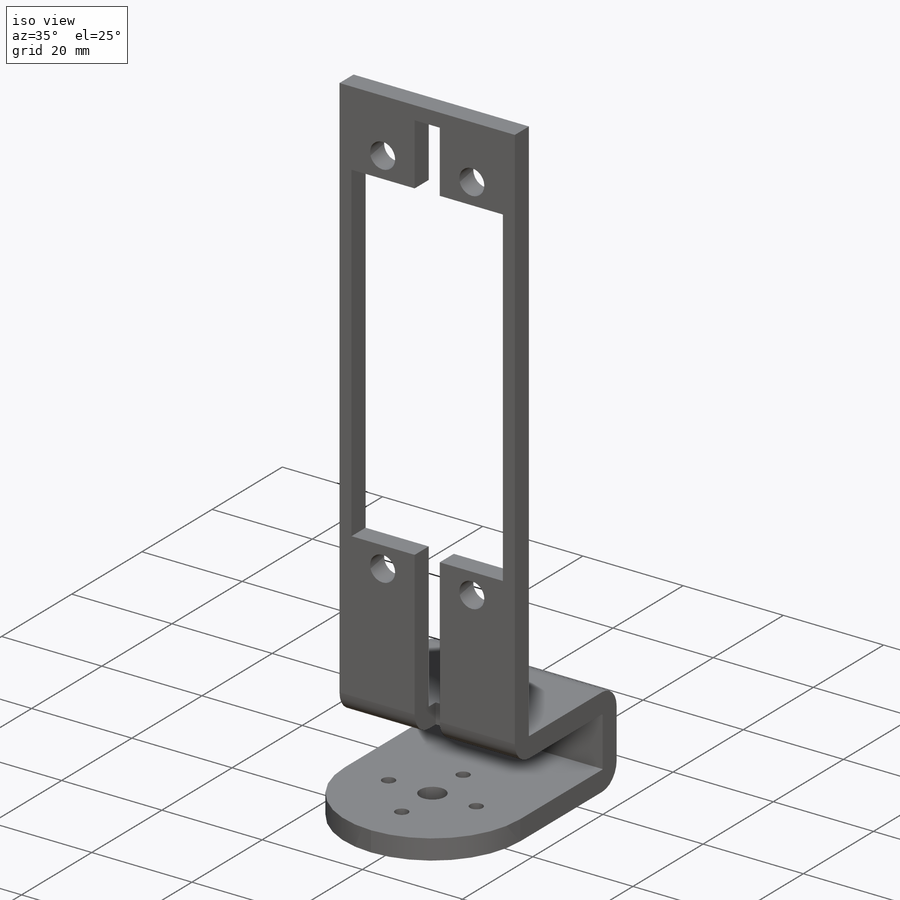
[diagram: iso view]
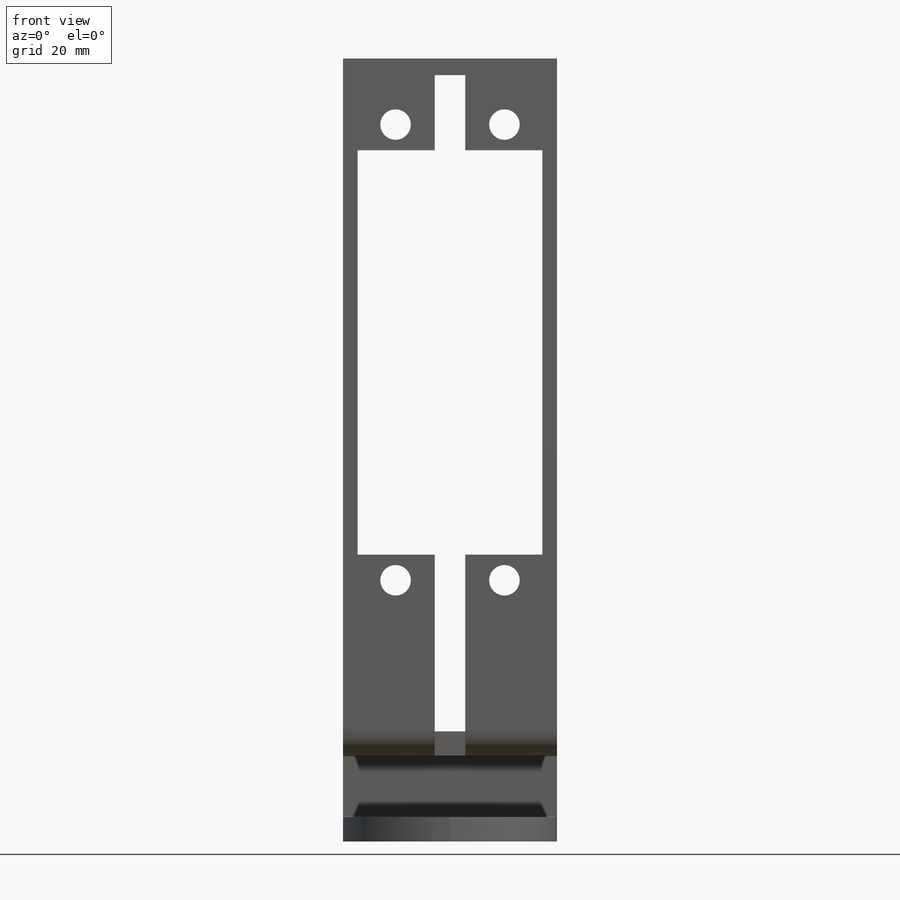
[diagram: front view]
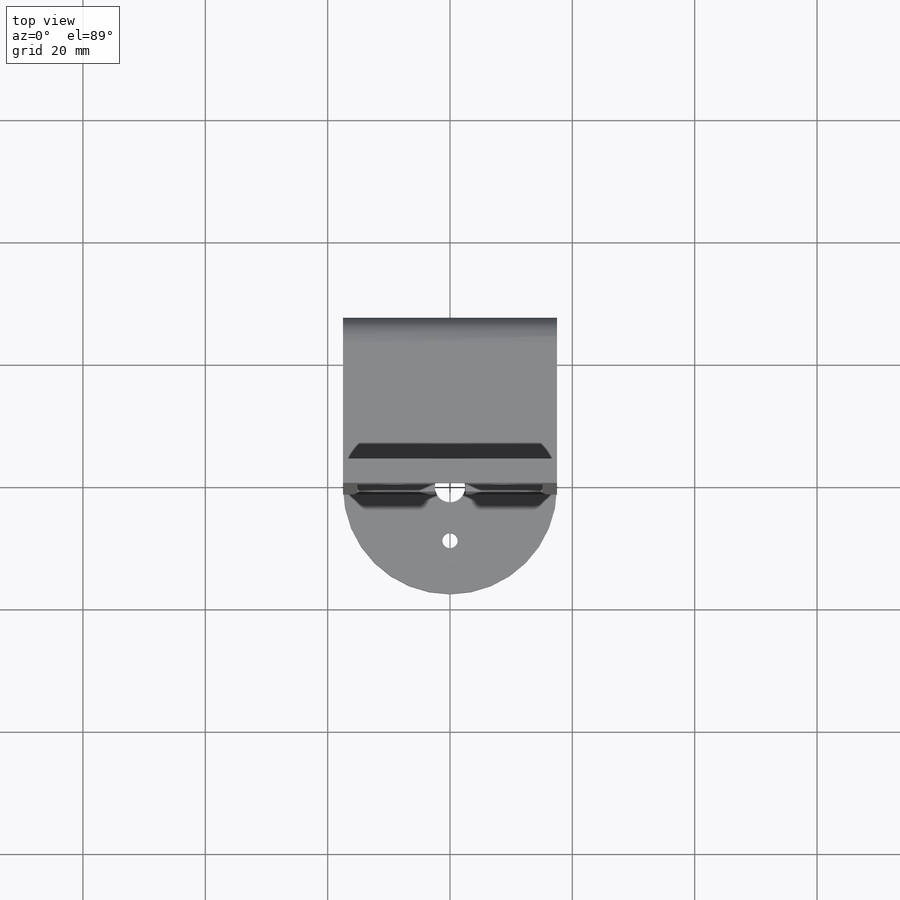
[diagram: top view]
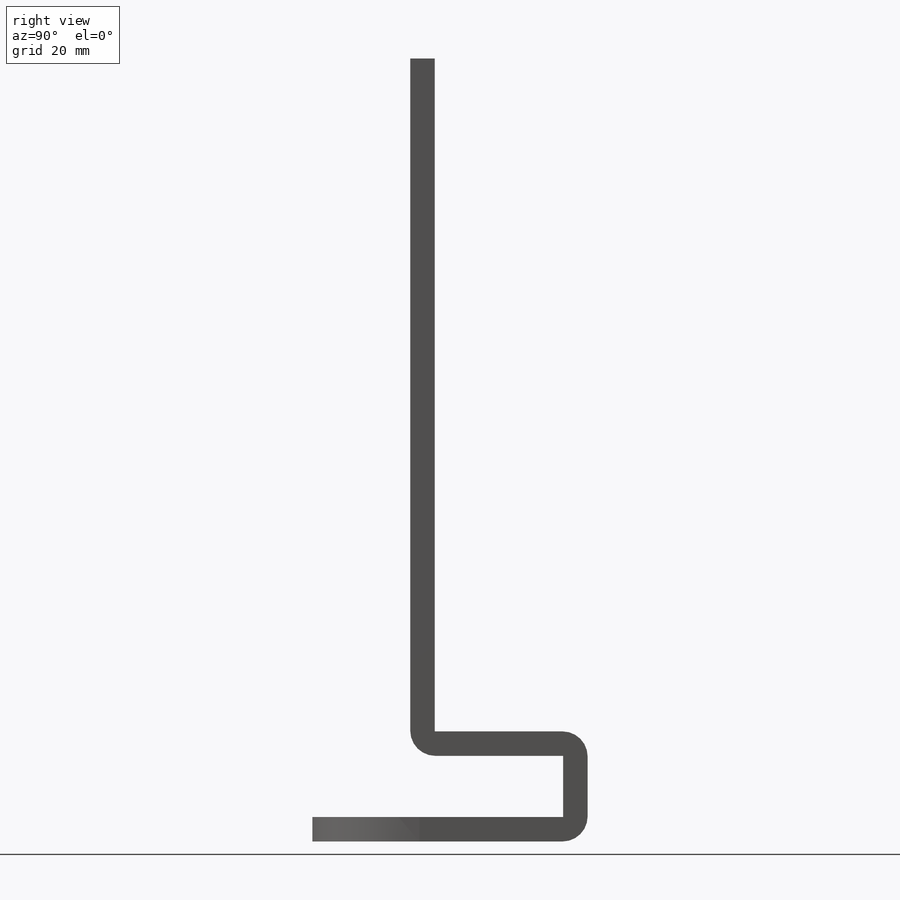
[diagram: right view]
SOLIDWORKS PART (.sldprt)
format: sldprt  version: not decoded by parser v0  size: 674,816 bytes
history: native  units: mm
features: sketch x8, extrude x3, cut_extrude x3, material x1, sheet_metal_op x1 + 3 further entries (+11 scaffold rows collapsed; 1 parser-record rows omitted)
feature tree (31):
  scaffold x11  (default folders/planes/origin — collapsed)
  material  "Material <not specified>"
  sketch  "Sketch3"  dims[D1=27.5mm]
  extrude  "Boss-Extrude2"  Depth=4mm
  sketch  "Sketch4"  dims[D1=4.0mm D2=35.0mm]
  extrude  "Boss-Extrude3"  Depth=10mm
  sketch  "Sketch6"  dims[D1=29.0mm]
  extrude  "Boss-Extrude4"  Depth=35mm
  sketch  "Sketch9"  dims[c1.D1=66.1mm c1.D2=30.2mm c2.D1=~17.999252mm]
  cut_extrude  "Cut-Extrude1"  Depth=6mm
  sketch  "Sketch10"  dims[D1=~17.081141mm]
  cut_extrude  "Cut-Extrude2"  Depth=6mm
  sketch  "Sketch11"  dims[D1=1.5mm]
  cut_extrude  "Cut-Extrude3"  Depth=4mm
  sheet_metal_op  "Sheet-Metal2"  SharpBend2=0 SharpBend3=0
  "Flat-Pattern1"
  sketch  "Bend-Lines1"
  sketch  "Bounding-Box1"
  "Flatten-<SharpBend2>1"
  "Flatten-<SharpBend3>1"
  parser-record x1  (decoder bookkeeping rows leaked as tree rows — omitted from the tree; the rows remain in map.json)
decode coverage: 13 of 15 modeling features carry decoded parameters; 3 rows unclassified (native names shown)
note: ~ marks probable driven/reference dimensions
note: suppression state not decoded; provenance and decode notes live in map.json
